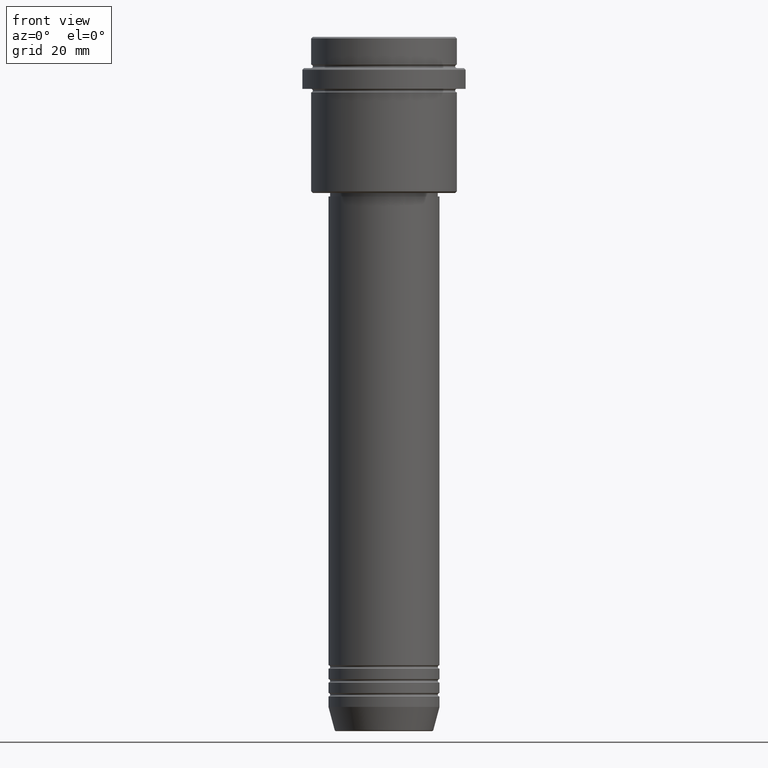
[diagram: clean part render]
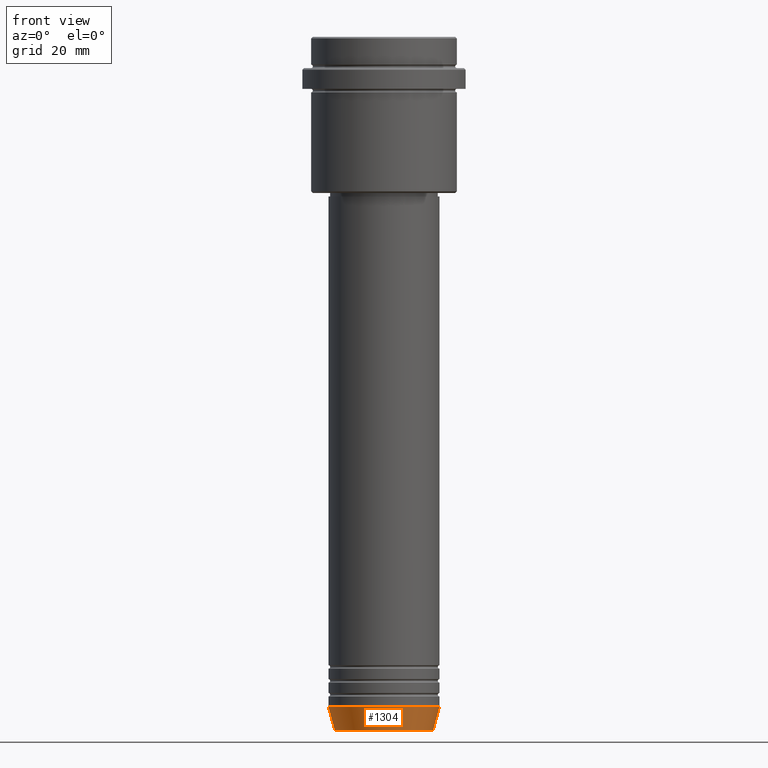
[diagram: same view with one face highlighted and labeled with its STEP entity id]
A machine part, front view. The second image highlights one B-rep face of the part: STEP entity #1304.
In plain terms, the highlighted conical surface has half-angle 15 deg.
Its self-contained STEP definition (entity closure, byte-faithful):
#45 = VECTOR ( 'NONE', #174, 1000.000000000000000 ) ;
#84 = VERTEX_POINT ( 'NONE', #673 ) ;
#86 = DIRECTION ( 'NONE',  ( 1.000000000000000000, 0.000000000000000000, 0.000000000000000000 ) ) ;
#88 = CARTESIAN_POINT ( 'NONE',  ( -16.00000000000000000, 1.959434878635765131E-15, -193.0000000000000000 ) ) ;
#95 = DIRECTION ( 'NONE',  ( 1.000000000000000000, 0.000000000000000000, 0.000000000000000000 ) ) ;
#153 = VERTEX_POINT ( 'NONE', #245 ) ;
#174 = DIRECTION ( 'NONE',  ( -0.2588190451025213501, 3.169619151431772337E-17, 0.9659258262890680902 ) ) ;
#212 = ORIENTED_EDGE ( 'NONE', *, *, #385, .F. ) ;
#229 = DIRECTION ( 'NONE',  ( 0.2588190451025213501, 0.000000000000000000, 0.9659258262890680902 ) ) ;
#234 = CARTESIAN_POINT ( 'NONE',  ( 16.00000000000000000, 0.000000000000000000, -193.0000000000000000 ) ) ;
#245 = CARTESIAN_POINT ( 'NONE',  ( -14.22365507213718239, 1.850665122131322942E-15, -199.6294095225512706 ) ) ;
#264 = AXIS2_PLACEMENT_3D ( 'NONE', #834, #936, #95 ) ;
#324 = AXIS2_PLACEMENT_3D ( 'NONE', #1143, #587, #86 ) ;
#358 = EDGE_LOOP ( 'NONE', ( #979, #1312, #521, #212 ) ) ;
#385 = EDGE_CURVE ( 'NONE', #831, #84, #651, .T. ) ;
#387 = EDGE_CURVE ( 'NONE', #153, #950, #954, .T. ) ;
#415 = AXIS2_PLACEMENT_3D ( 'NONE', #1393, #1064, #946 ) ;
#487 = VECTOR ( 'NONE', #229, 1000.000000000000000 ) ;
#505 = FACE_OUTER_BOUND ( 'NONE', #358, .T. ) ;
#521 = ORIENTED_EDGE ( 'NONE', *, *, #841, .T. ) ;
#587 = DIRECTION ( 'NONE',  ( -0.000000000000000000, -0.000000000000000000, 1.000000000000000000 ) ) ;
#651 = CIRCLE ( 'NONE', #324, 16.00000000000000000 ) ;
#665 = CARTESIAN_POINT ( 'NONE',  ( -16.00000000000000000, 1.959434878635765131E-15, -193.0000000000000000 ) ) ;
#673 = CARTESIAN_POINT ( 'NONE',  ( 16.00000000000000000, 0.000000000000000000, -193.0000000000000000 ) ) ;
#831 = VERTEX_POINT ( 'NONE', #665 ) ;
#834 = CARTESIAN_POINT ( 'NONE',  ( 0.000000000000000000, 0.000000000000000000, -193.0000000000000000 ) ) ;
#841 = EDGE_CURVE ( 'NONE', #950, #84, #856, .T. ) ;
#856 = LINE ( 'NONE', #234, #487 ) ;
#936 = DIRECTION ( 'NONE',  ( -0.000000000000000000, -0.000000000000000000, 1.000000000000000000 ) ) ;
#946 = DIRECTION ( 'NONE',  ( 1.000000000000000000, 0.000000000000000000, 0.000000000000000000 ) ) ;
#950 = VERTEX_POINT ( 'NONE', #1246 ) ;
#954 = CIRCLE ( 'NONE', #415, 14.22365507213718239 ) ;
#979 = ORIENTED_EDGE ( 'NONE', *, *, #1359, .F. ) ;
#1041 = LINE ( 'NONE', #88, #45 ) ;
#1064 = DIRECTION ( 'NONE',  ( -0.000000000000000000, -0.000000000000000000, 1.000000000000000000 ) ) ;
#1143 = CARTESIAN_POINT ( 'NONE',  ( 0.000000000000000000, 0.000000000000000000, -193.0000000000000000 ) ) ;
#1246 = CARTESIAN_POINT ( 'NONE',  ( 14.22365507213718239, 0.000000000000000000, -199.6294095225512706 ) ) ;
#1304 = ADVANCED_FACE ( 'NONE', ( #505 ), #1367, .T. ) ;
#1312 = ORIENTED_EDGE ( 'NONE', *, *, #387, .T. ) ;
#1359 = EDGE_CURVE ( 'NONE', #153, #831, #1041, .T. ) ;
#1367 = CONICAL_SURFACE ( 'NONE', #264, 16.00000000000000000, 0.2617993877991500740 ) ;
#1393 = CARTESIAN_POINT ( 'NONE',  ( 0.000000000000000000, 0.000000000000000000, -199.6294095225512706 ) ) ;